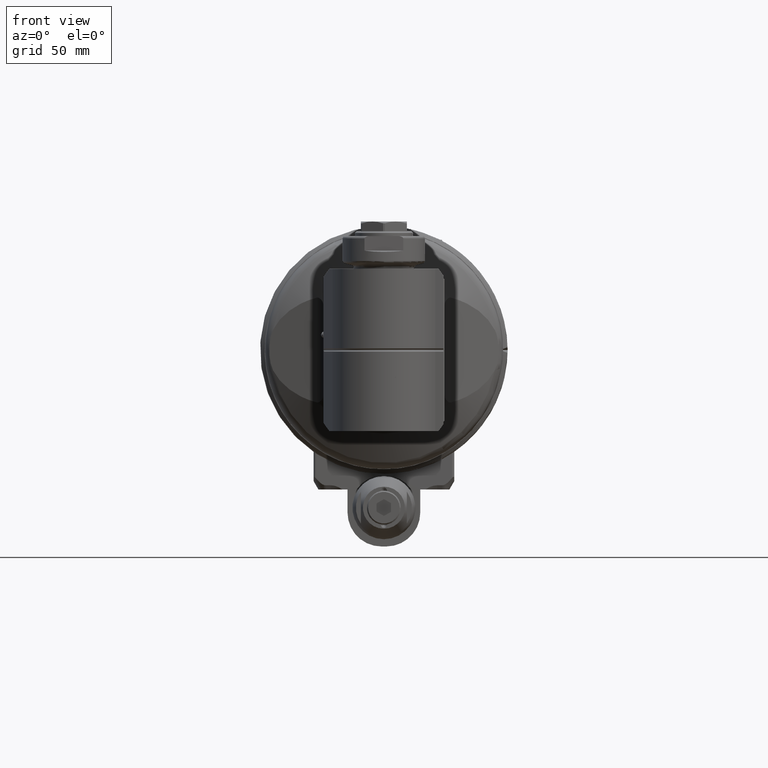
[diagram: clean part render]
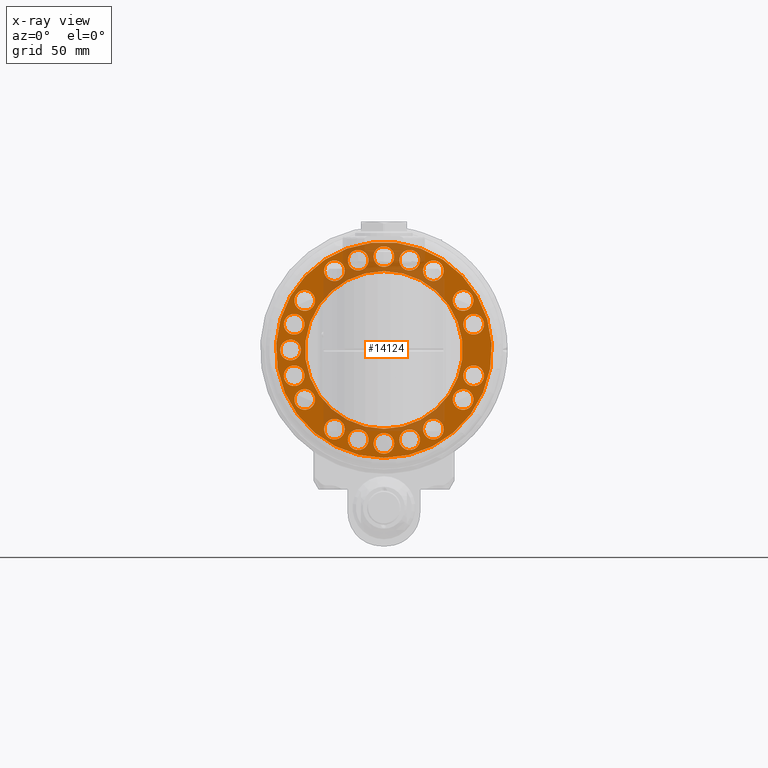
[diagram: x-ray — body ghosted, one internal face saturated and labeled with its STEP entity id]
A machine part, front view, then the same camera in x-ray: the body is ghosted and one INTERNAL B-rep face — a face not visible from any outside direction — is saturated and labeled: STEP entity #14124.
In plain terms, the highlighted planar face has unit normal (-0, -1, -0).
Its self-contained STEP definition (entity closure, byte-faithful):
#318=FACE_BOUND('',#2904,.T.);
#319=FACE_BOUND('',#2905,.T.);
#320=FACE_BOUND('',#2906,.T.);
#321=FACE_BOUND('',#2907,.T.);
#322=FACE_BOUND('',#2908,.T.);
#323=FACE_BOUND('',#2909,.T.);
#324=FACE_BOUND('',#2910,.T.);
#325=FACE_BOUND('',#2911,.T.);
#326=FACE_BOUND('',#2912,.T.);
#327=FACE_BOUND('',#2913,.T.);
#328=FACE_BOUND('',#2914,.T.);
#329=FACE_BOUND('',#2915,.T.);
#330=FACE_BOUND('',#2916,.T.);
#331=FACE_BOUND('',#2917,.T.);
#332=FACE_BOUND('',#2918,.T.);
#333=FACE_BOUND('',#2919,.T.);
#334=FACE_BOUND('',#2920,.T.);
#335=FACE_BOUND('',#2921,.T.);
#336=FACE_BOUND('',#2922,.T.);
#337=FACE_BOUND('',#2923,.T.);
#929=PLANE('',#15751);
#1906=FACE_OUTER_BOUND('',#2903,.T.);
#2903=EDGE_LOOP('',(#12292));
#2904=EDGE_LOOP('',(#12293));
#2905=EDGE_LOOP('',(#12294));
#2906=EDGE_LOOP('',(#12295));
#2907=EDGE_LOOP('',(#12296));
#2908=EDGE_LOOP('',(#12297));
#2909=EDGE_LOOP('',(#12298));
#2910=EDGE_LOOP('',(#12299));
#2911=EDGE_LOOP('',(#12300));
#2912=EDGE_LOOP('',(#12301));
#2913=EDGE_LOOP('',(#12302));
#2914=EDGE_LOOP('',(#12303));
#2915=EDGE_LOOP('',(#12304));
#2916=EDGE_LOOP('',(#12305));
#2917=EDGE_LOOP('',(#12306));
#2918=EDGE_LOOP('',(#12307));
#2919=EDGE_LOOP('',(#12308));
#2920=EDGE_LOOP('',(#12309));
#2921=EDGE_LOOP('',(#12310));
#2922=EDGE_LOOP('',(#12311));
#2923=EDGE_LOOP('',(#12312));
#3834=CIRCLE('',#15750,44.5);
#3835=CIRCLE('',#15752,4.25);
#3836=CIRCLE('',#15753,4.25);
#3837=CIRCLE('',#15754,4.25);
#3838=CIRCLE('',#15755,4.25);
#3839=CIRCLE('',#15756,4.25);
#3840=CIRCLE('',#15757,4.25);
#3841=CIRCLE('',#15758,4.25);
#3842=CIRCLE('',#15759,4.25);
#3843=CIRCLE('',#15760,4.25);
#3844=CIRCLE('',#15761,4.25);
#3845=CIRCLE('',#15762,4.25);
#3846=CIRCLE('',#15763,4.25);
#3847=CIRCLE('',#15764,4.25);
#3848=CIRCLE('',#15765,4.25);
#3849=CIRCLE('',#15766,4.25);
#3850=CIRCLE('',#15767,4.25);
#3851=CIRCLE('',#15768,32.5);
#3852=CIRCLE('',#15769,4.25);
#3853=CIRCLE('',#15770,4.25);
#3854=CIRCLE('',#15771,4.25);
#6838=VERTEX_POINT('',#54666);
#6839=VERTEX_POINT('',#54670);
#6840=VERTEX_POINT('',#54672);
#6841=VERTEX_POINT('',#54674);
#6842=VERTEX_POINT('',#54676);
#6843=VERTEX_POINT('',#54678);
#6844=VERTEX_POINT('',#54680);
#6845=VERTEX_POINT('',#54682);
#6846=VERTEX_POINT('',#54684);
#6847=VERTEX_POINT('',#54686);
#6848=VERTEX_POINT('',#54688);
#6849=VERTEX_POINT('',#54690);
#6850=VERTEX_POINT('',#54692);
#6851=VERTEX_POINT('',#54694);
#6852=VERTEX_POINT('',#54696);
#6853=VERTEX_POINT('',#54698);
#6854=VERTEX_POINT('',#54700);
#6855=VERTEX_POINT('',#54702);
#6856=VERTEX_POINT('',#54704);
#6857=VERTEX_POINT('',#54706);
#6858=VERTEX_POINT('',#54708);
#8727=EDGE_CURVE('',#6838,#6838,#3834,.T.);
#8728=EDGE_CURVE('',#6839,#6839,#3835,.T.);
#8729=EDGE_CURVE('',#6840,#6840,#3836,.T.);
#8730=EDGE_CURVE('',#6841,#6841,#3837,.T.);
#8731=EDGE_CURVE('',#6842,#6842,#3838,.T.);
#8732=EDGE_CURVE('',#6843,#6843,#3839,.T.);
#8733=EDGE_CURVE('',#6844,#6844,#3840,.T.);
#8734=EDGE_CURVE('',#6845,#6845,#3841,.T.);
#8735=EDGE_CURVE('',#6846,#6846,#3842,.T.);
#8736=EDGE_CURVE('',#6847,#6847,#3843,.T.);
#8737=EDGE_CURVE('',#6848,#6848,#3844,.T.);
#8738=EDGE_CURVE('',#6849,#6849,#3845,.T.);
#8739=EDGE_CURVE('',#6850,#6850,#3846,.T.);
#8740=EDGE_CURVE('',#6851,#6851,#3847,.T.);
#8741=EDGE_CURVE('',#6852,#6852,#3848,.T.);
#8742=EDGE_CURVE('',#6853,#6853,#3849,.T.);
#8743=EDGE_CURVE('',#6854,#6854,#3850,.T.);
#8744=EDGE_CURVE('',#6855,#6855,#3851,.T.);
#8745=EDGE_CURVE('',#6856,#6856,#3852,.T.);
#8746=EDGE_CURVE('',#6857,#6857,#3853,.T.);
#8747=EDGE_CURVE('',#6858,#6858,#3854,.T.);
#12292=ORIENTED_EDGE('',*,*,#8727,.T.);
#12293=ORIENTED_EDGE('',*,*,#8728,.T.);
#12294=ORIENTED_EDGE('',*,*,#8729,.T.);
#12295=ORIENTED_EDGE('',*,*,#8730,.T.);
#12296=ORIENTED_EDGE('',*,*,#8731,.T.);
#12297=ORIENTED_EDGE('',*,*,#8732,.T.);
#12298=ORIENTED_EDGE('',*,*,#8733,.T.);
#12299=ORIENTED_EDGE('',*,*,#8734,.T.);
#12300=ORIENTED_EDGE('',*,*,#8735,.T.);
#12301=ORIENTED_EDGE('',*,*,#8736,.T.);
#12302=ORIENTED_EDGE('',*,*,#8737,.T.);
#12303=ORIENTED_EDGE('',*,*,#8738,.T.);
#12304=ORIENTED_EDGE('',*,*,#8739,.T.);
#12305=ORIENTED_EDGE('',*,*,#8740,.T.);
#12306=ORIENTED_EDGE('',*,*,#8741,.T.);
#12307=ORIENTED_EDGE('',*,*,#8742,.T.);
#12308=ORIENTED_EDGE('',*,*,#8743,.T.);
#12309=ORIENTED_EDGE('',*,*,#8744,.T.);
#12310=ORIENTED_EDGE('',*,*,#8745,.T.);
#12311=ORIENTED_EDGE('',*,*,#8746,.T.);
#12312=ORIENTED_EDGE('',*,*,#8747,.T.);
#14124=ADVANCED_FACE('',(#1906,#318,#319,#320,#321,#322,#323,#324,#325,
#326,#327,#328,#329,#330,#331,#332,#333,#334,#335,#336,#337),#929,.F.);
#15750=AXIS2_PLACEMENT_3D('',#54668,#19498,#19499);
#15751=AXIS2_PLACEMENT_3D('',#54669,#19500,#19501);
#15752=AXIS2_PLACEMENT_3D('',#54671,#19502,#19503);
#15753=AXIS2_PLACEMENT_3D('',#54673,#19504,#19505);
#15754=AXIS2_PLACEMENT_3D('',#54675,#19506,#19507);
#15755=AXIS2_PLACEMENT_3D('',#54677,#19508,#19509);
#15756=AXIS2_PLACEMENT_3D('',#54679,#19510,#19511);
#15757=AXIS2_PLACEMENT_3D('',#54681,#19512,#19513);
#15758=AXIS2_PLACEMENT_3D('',#54683,#19514,#19515);
#15759=AXIS2_PLACEMENT_3D('',#54685,#19516,#19517);
#15760=AXIS2_PLACEMENT_3D('',#54687,#19518,#19519);
#15761=AXIS2_PLACEMENT_3D('',#54689,#19520,#19521);
#15762=AXIS2_PLACEMENT_3D('',#54691,#19522,#19523);
#15763=AXIS2_PLACEMENT_3D('',#54693,#19524,#19525);
#15764=AXIS2_PLACEMENT_3D('',#54695,#19526,#19527);
#15765=AXIS2_PLACEMENT_3D('',#54697,#19528,#19529);
#15766=AXIS2_PLACEMENT_3D('',#54699,#19530,#19531);
#15767=AXIS2_PLACEMENT_3D('',#54701,#19532,#19533);
#15768=AXIS2_PLACEMENT_3D('',#54703,#19534,#19535);
#15769=AXIS2_PLACEMENT_3D('',#54705,#19536,#19537);
#15770=AXIS2_PLACEMENT_3D('',#54707,#19538,#19539);
#15771=AXIS2_PLACEMENT_3D('',#54709,#19540,#19541);
#19498=DIRECTION('center_axis',(-1.,0.,0.));
#19499=DIRECTION('ref_axis',(0.,-1.,0.));
#19500=DIRECTION('center_axis',(1.,0.,0.));
#19501=DIRECTION('ref_axis',(0.,-1.,0.));
#19502=DIRECTION('center_axis',(1.,0.,0.));
#19503=DIRECTION('ref_axis',(0.,0.,-1.));
#19504=DIRECTION('center_axis',(1.,0.,0.));
#19505=DIRECTION('ref_axis',(0.,0.,-1.));
#19506=DIRECTION('center_axis',(1.,0.,0.));
#19507=DIRECTION('ref_axis',(0.,0.,-1.));
#19508=DIRECTION('center_axis',(1.,0.,0.));
#19509=DIRECTION('ref_axis',(0.,0.,-1.));
#19510=DIRECTION('center_axis',(1.,0.,0.));
#19511=DIRECTION('ref_axis',(0.,0.,-1.));
#19512=DIRECTION('center_axis',(1.,0.,0.));
#19513=DIRECTION('ref_axis',(0.,0.,-1.));
#19514=DIRECTION('center_axis',(1.,0.,0.));
#19515=DIRECTION('ref_axis',(0.,0.,-1.));
#19516=DIRECTION('center_axis',(1.,0.,0.));
#19517=DIRECTION('ref_axis',(0.,0.,-1.));
#19518=DIRECTION('center_axis',(1.,0.,0.));
#19519=DIRECTION('ref_axis',(0.,0.,-1.));
#19520=DIRECTION('center_axis',(1.,0.,0.));
#19521=DIRECTION('ref_axis',(0.,0.,-1.));
#19522=DIRECTION('center_axis',(1.,0.,0.));
#19523=DIRECTION('ref_axis',(0.,0.,-1.));
#19524=DIRECTION('center_axis',(1.,0.,0.));
#19525=DIRECTION('ref_axis',(0.,0.,-1.));
#19526=DIRECTION('center_axis',(1.,0.,0.));
#19527=DIRECTION('ref_axis',(0.,0.,-1.));
#19528=DIRECTION('center_axis',(1.,0.,0.));
#19529=DIRECTION('ref_axis',(0.,0.,-1.));
#19530=DIRECTION('center_axis',(1.,0.,0.));
#19531=DIRECTION('ref_axis',(0.,0.,-1.));
#19532=DIRECTION('center_axis',(1.,0.,0.));
#19533=DIRECTION('ref_axis',(0.,0.,-1.));
#19534=DIRECTION('center_axis',(1.,0.,0.));
#19535=DIRECTION('ref_axis',(0.,1.,0.));
#19536=DIRECTION('center_axis',(1.,0.,0.));
#19537=DIRECTION('ref_axis',(0.,0.,-1.));
#19538=DIRECTION('center_axis',(1.,0.,0.));
#19539=DIRECTION('ref_axis',(0.,0.,-1.));
#19540=DIRECTION('center_axis',(1.,0.,0.));
#19541=DIRECTION('ref_axis',(0.,0.,-1.));
#54666=CARTESIAN_POINT('',(4.,44.5,0.));
#54668=CARTESIAN_POINT('Origin',(4.,0.,0.));
#54669=CARTESIAN_POINT('Origin',(4.,50.6886,0.));
#54670=CARTESIAN_POINT('',(4.,20.40189167298,-28.39985170202));
#54671=CARTESIAN_POINT('Origin',(4.,20.40189167298,-32.64985170202));
#54672=CARTESIAN_POINT('',(4.,32.64985170202,24.65189167298));
#54673=CARTESIAN_POINT('Origin',(4.,32.64985170202,20.40189167298));
#54674=CARTESIAN_POINT('',(4.,10.61203819895,41.25857529363));
#54675=CARTESIAN_POINT('Origin',(4.,10.61203819895,37.00857529363));
#54676=CARTESIAN_POINT('',(4.,-10.61203819895,-32.75857529363));
#54677=CARTESIAN_POINT('Origin',(4.,-10.61203819895,-37.00857529363));
#54678=CARTESIAN_POINT('',(4.,0.,-34.25));
#54679=CARTESIAN_POINT('Origin',(4.,0.,-38.5));
#54680=CARTESIAN_POINT('',(4.,10.61203819895,-32.75857529363));
#54681=CARTESIAN_POINT('Origin',(4.,10.61203819895,-37.00857529363));
#54682=CARTESIAN_POINT('',(4.,-32.64985170202,24.65189167298));
#54683=CARTESIAN_POINT('Origin',(4.,-32.64985170202,20.40189167298));
#54684=CARTESIAN_POINT('',(4.,-10.61203819895,41.25857529363));
#54685=CARTESIAN_POINT('Origin',(4.,-10.61203819895,37.00857529363));
#54686=CARTESIAN_POINT('',(4.,20.40189167298,36.89985170202));
#54687=CARTESIAN_POINT('Origin',(4.,20.40189167298,32.64985170202));
#54688=CARTESIAN_POINT('',(4.,-20.40189167298,36.89985170202));
#54689=CARTESIAN_POINT('Origin',(4.,-20.40189167298,32.64985170202));
#54690=CARTESIAN_POINT('',(4.,-37.00857529363,-6.362038198954));
#54691=CARTESIAN_POINT('Origin',(4.,-37.00857529363,-10.61203819895));
#54692=CARTESIAN_POINT('',(4.,-38.5,4.25));
#54693=CARTESIAN_POINT('Origin',(4.,-38.5,0.));
#54694=CARTESIAN_POINT('',(4.,-37.00857529363,14.86203819895));
#54695=CARTESIAN_POINT('Origin',(4.,-37.00857529363,10.61203819895));
#54696=CARTESIAN_POINT('',(4.,37.00857529363,14.86203819895));
#54697=CARTESIAN_POINT('Origin',(4.,37.00857529363,10.61203819895));
#54698=CARTESIAN_POINT('',(4.,38.5,4.25));
#54699=CARTESIAN_POINT('Origin',(4.,38.5,0.));
#54700=CARTESIAN_POINT('',(4.,37.00857529363,-6.362038198954));
#54701=CARTESIAN_POINT('Origin',(4.,37.00857529363,-10.61203819895));
#54702=CARTESIAN_POINT('',(4.,32.5,0.));
#54703=CARTESIAN_POINT('Origin',(4.,0.,0.));
#54704=CARTESIAN_POINT('',(4.,-20.40189167298,-28.39985170202));
#54705=CARTESIAN_POINT('Origin',(4.,-20.40189167298,-32.64985170202));
#54706=CARTESIAN_POINT('',(4.,-32.64985170202,-16.15189167298));
#54707=CARTESIAN_POINT('Origin',(4.,-32.64985170202,-20.40189167298));
#54708=CARTESIAN_POINT('',(4.,32.64985170202,-16.15189167298));
#54709=CARTESIAN_POINT('Origin',(4.,32.64985170202,-20.40189167298));